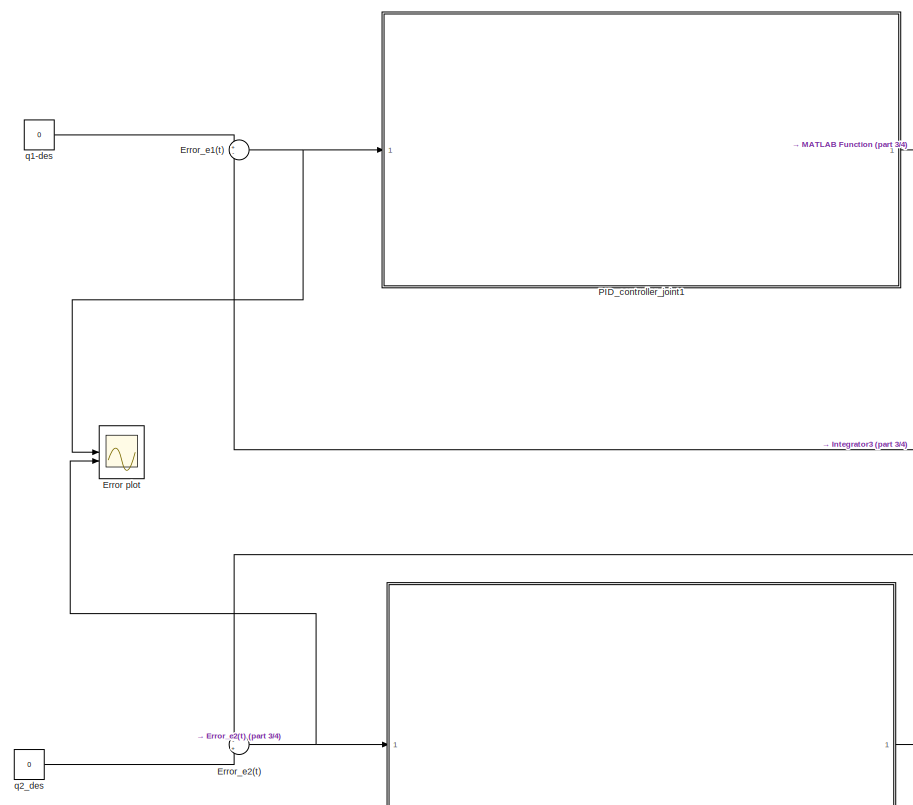
[diagram: root canvas - part 1/4, left side, full height]
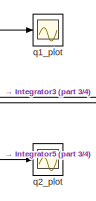
[diagram: root canvas - part 2/4, middle right region]
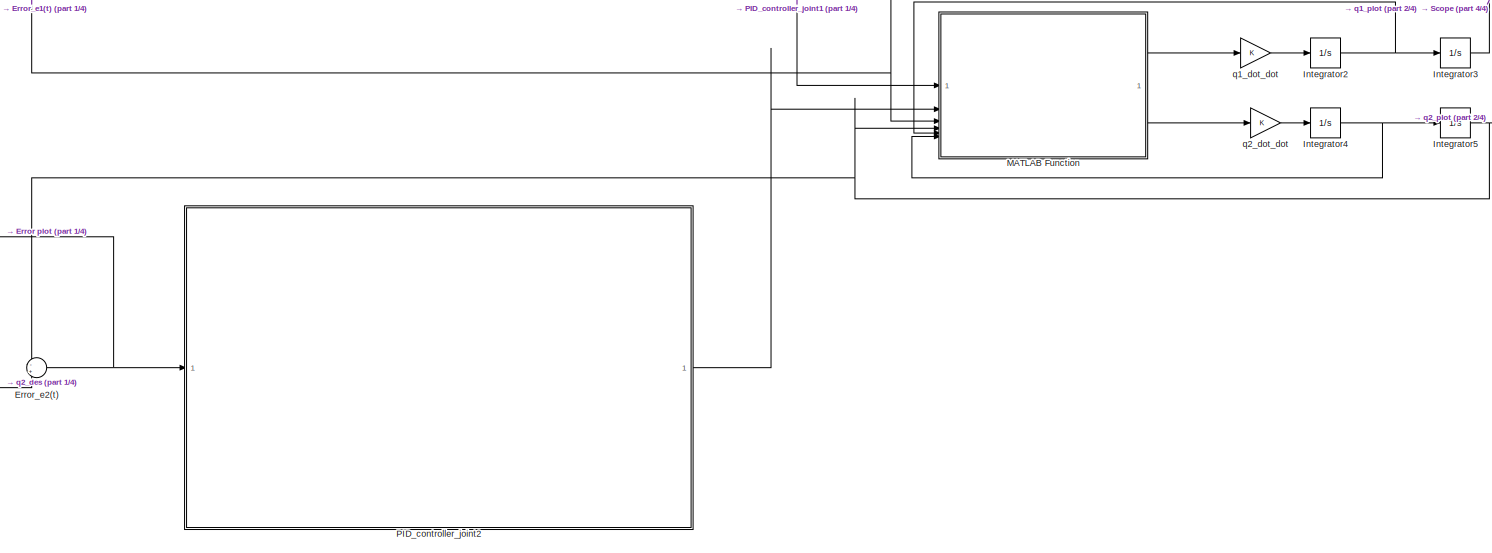
[diagram: root canvas - part 3/4, full width, bottom band]
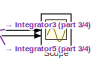
[diagram: root canvas - part 4/4, middle right region]
MODEL slx_2d54d637e5fa
KIND model
CONFIG AbsTol = auto
CONFIG EnableMultiTasking = off
CONFIG FixedStep = auto
CONFIG MaxStep = auto
CONFIG MinStep = auto
CONFIG RelTol = 1e-3
CONFIG SampleTimeConstraint = Unconstrained
CONFIG SolverName = VariableStepAuto
CONFIG StartTime = 0.0
CONFIG StopTime = 10.0
BLOCK [Scope] Error plot
  ActiveDisplayYMaximum = 5.6403532247882645E+43
  ActiveDisplayYMinimum = -5.3633481280846287E+43
  DataLoggingVariableName = ScopeData2
  Floating = off
  GraphicalSettings = {"Style":{"BackgroundColor":[0.12941176470588237,0.12941176470588237,0.12941176470588237],"AxesColor":[0.07058823529411765,0.07058823529411765,0.07058823529411765],"LabelsColor":[0.8509803921568627,0.8509803921568627,0.8509803921568627],"PreserveColors":false,"Visible":[true,true],"LineStyle":["-","-"],"LineWidth":[1.5,1.5],"BarWidth":[0.9,0.9],"LineColor":["auto","auto"],"LineFaceAlpha":[1,1],"Li...<+2220ch>
  MultipleDisplayCache = [{"MaxYLimMag":8.1305980641416589E+40,"MaxYLimReal":5.6403532247882645E+43,"MinYLimMag":0,"MinYLimReal":-5.3633481280846287E+43,"PlotAsMagnitudePhase":false,"ShowGrid":true,"ShowLegend":true,"Title":"Ki_1= 5,Ki_2=5,Kp_1=200,Kp_2=200,Kd_1=400,Kd_2=400","YLabel":""}]
  NumInputPorts = 2
  ScopeFrameLocation = window
  ShowLegend = on
  Title = Ki_1= 5,Ki_2=5,Kp_1=200,Kp_2=200,Kd_1=400,Kd_2=400
  Visible = on
  WasSavedAsWebScope = on
  WindowPosition = [0.000000,36.000000,1536.000000,793.000000,]
BLOCK [Sum] Error_e1(t)
  Inputs = +-
BLOCK [Sum] Error_e2(t)
  Inputs = -+
BLOCK [Integrator] Integrator2
BLOCK [Integrator] Integrator3
BLOCK [Integrator] Integrator4
BLOCK [Integrator] Integrator5
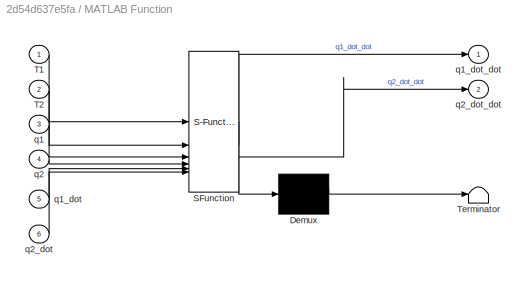
BLOCK [SubSystem] MATLAB Function
  ErrorFcn = Stateflow.Translate.translate
  PermitHierarchicalResolution = ExplicitOnly
  SFBlockType = MATLAB Function
  TreatAsAtomicUnit = on
BLOCK [Demux] MATLAB Function/ Demux 
  Outputs = 1
BLOCK [S-Function] MATLAB Function/ SFunction 
  EnableBusSupport = off
  FunctionName = sf_sfun
  PortCounts = [6 3]
  SFcnIsStateOwnerBlock = off
  SFunctionDeploymentMode = off
  Tag = Stateflow S-Function 2
BLOCK [Terminator] MATLAB Function/ Terminator 
BLOCK [Inport] MATLAB Function/T1
BLOCK [Inport] MATLAB Function/T2
  Port = 2
BLOCK [Inport] MATLAB Function/q1
  Port = 3
BLOCK [Inport] MATLAB Function/q1_dot
  Port = 5
BLOCK [Outport] MATLAB Function/q1_dot_dot
BLOCK [Inport] MATLAB Function/q2
  Port = 4
BLOCK [Inport] MATLAB Function/q2_dot
  Port = 6
BLOCK [Outport] MATLAB Function/q2_dot_dot
  Port = 2
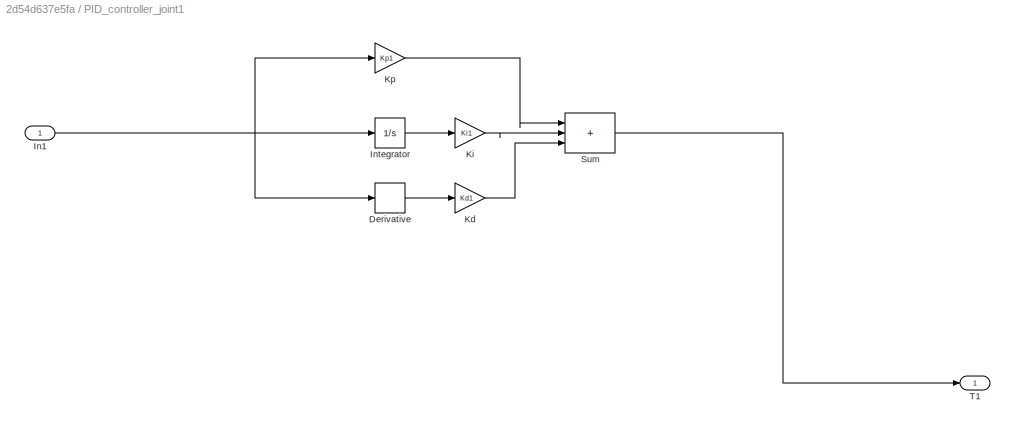
BLOCK [SubSystem] PID_controller_joint1
BLOCK [Derivative] PID_controller_joint1/Derivative
BLOCK [Inport] PID_controller_joint1/In1
BLOCK [Integrator] PID_controller_joint1/Integrator
BLOCK [Gain] PID_controller_joint1/Kd
  Gain = Kd1
BLOCK [Gain] PID_controller_joint1/Ki
  Gain = Ki1
BLOCK [Gain] PID_controller_joint1/Kp
  Gain = Kp1
BLOCK [Sum] PID_controller_joint1/Sum
  IconShape = rectangular
  Inputs = |+++
BLOCK [Outport] PID_controller_joint1/T1
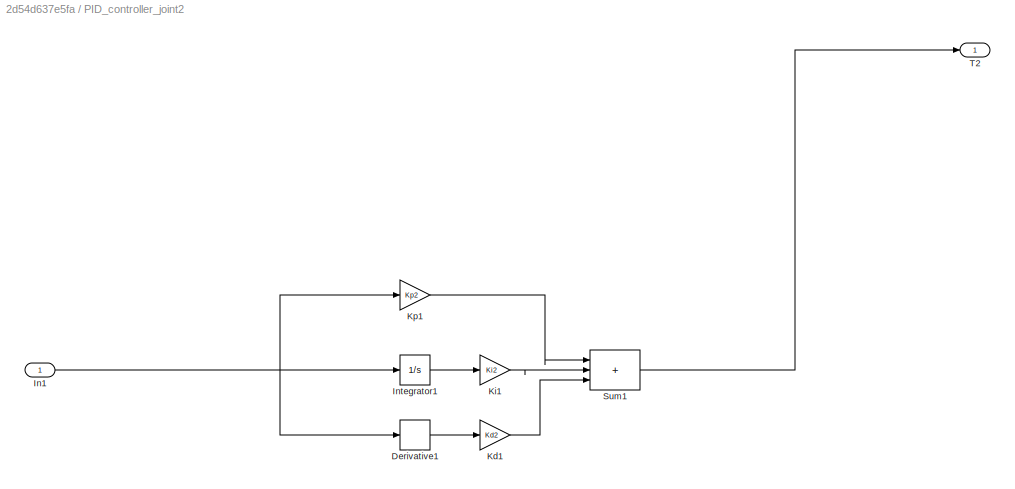
BLOCK [SubSystem] PID_controller_joint2
BLOCK [Derivative] PID_controller_joint2/Derivative1
BLOCK [Inport] PID_controller_joint2/In1
BLOCK [Integrator] PID_controller_joint2/Integrator1
BLOCK [Gain] PID_controller_joint2/Kd1
  Gain = Kd2
BLOCK [Gain] PID_controller_joint2/Ki1
  Gain = Ki2
BLOCK [Gain] PID_controller_joint2/Kp1
  Gain = Kp2
BLOCK [Sum] PID_controller_joint2/Sum1
  IconShape = rectangular
  Inputs = |+++
BLOCK [Outport] PID_controller_joint2/T2
BLOCK [Scope] Scope
  ActiveDisplayYMaximum = 0.011310468207808053
  ActiveDisplayYMinimum = -0.092497055065485209
  DataLoggingVariableName = ScopeData3
  Floating = off
  GraphicalSettings = {"Style":{"BackgroundColor":[0.12941176470588237,0.12941176470588237,0.12941176470588237],"AxesColor":[0.07058823529411765,0.07058823529411765,0.07058823529411765],"LabelsColor":[0.8509803921568627,0.8509803921568627,0.8509803921568627],"PreserveColors":false,"Visible":[true,true],"LineStyle":["-","-"],"LineWidth":[1.5,1.5],"BarWidth":[0.9,0.9],"LineColor":["auto","auto"],"LineFaceAlpha":[1,1],"Li...<+2144ch>
  MultipleDisplayCache = [{"MaxYLimMag":0.092497055065485209,"MaxYLimReal":0.011310468207808053,"MinYLimMag":0,"MinYLimReal":-0.092497055065485209,"PlotAsMagnitudePhase":false,"ShowGrid":true,"ShowLegend":false,"Title":"%<SignalLabel>","YLabel":""}]
  NumInputPorts = 2
  ScopeFrameLocation = window
  Visible = on
  WasSavedAsWebScope = on
  WindowPosition = [1.000000,49.000000,1536.000000,793.000000,]
BLOCK [Constant] q1-des
  Value = 0
BLOCK [Gain] q1_dot_dot
BLOCK [Scope] q1_plot
  ActiveDisplayYMaximum = 0.011310468207808053
  ActiveDisplayYMinimum = -0.092497055065485209
  Floating = off
  GraphicalSettings = {"Style":{"BackgroundColor":[0.12941176470588237,0.12941176470588237,0.12941176470588237],"AxesColor":[0.07058823529411765,0.07058823529411765,0.07058823529411765],"LabelsColor":[0.8509803921568627,0.8509803921568627,0.8509803921568627],"PreserveColors":false,"Visible":[true],"LineStyle":["-"],"LineWidth":[1.5],"BarWidth":[0.9],"LineColor":["auto"],"LineFaceAlpha":[1],"LineEdgeAlpha":[1],"Marker":...<+2020ch>
  MultipleDisplayCache = [{"MaxYLimMag":0.092497055065485209,"MaxYLimReal":0.011310468207808053,"MinYLimMag":0,"MinYLimReal":-0.092497055065485209,"PlotAsMagnitudePhase":false,"ShowGrid":true,"ShowLegend":false,"Title":"%<SignalLabel>","YLabel":""}]
  NumInputPorts = 1
  ScopeFrameLocation = window
  Visible = on
  WasSavedAsWebScope = on
  WindowPosition = [0.000000,36.000000,1536.000000,793.000000,]
BLOCK [Constant] q2_des
  Value = 0
BLOCK [Gain] q2_dot_dot
BLOCK [Scope] q2_plot
  ActiveDisplayYMaximum = 0.00045683308329411837
  ActiveDisplayYMinimum = -0.0028522802877235659
  DataLoggingVariableName = ScopeData1
  Floating = off
  GraphicalSettings = {"Style":{"BackgroundColor":[0.12941176470588237,0.12941176470588237,0.12941176470588237],"AxesColor":[0.07058823529411765,0.07058823529411765,0.07058823529411765],"LabelsColor":[0.8509803921568627,0.8509803921568627,0.8509803921568627],"PreserveColors":false,"Visible":[true],"LineStyle":["-"],"LineWidth":[1.5],"BarWidth":[0.9],"LineColor":["auto"],"LineFaceAlpha":[1],"LineEdgeAlpha":[1],"Marker":...<+2023ch>
  MultipleDisplayCache = [{"MaxYLimMag":0.0025743518960043171,"MaxYLimReal":0.00045683308329411837,"MinYLimMag":0,"MinYLimReal":-0.0028522802877235659,"PlotAsMagnitudePhase":false,"ShowGrid":true,"ShowLegend":false,"Title":"%<SignalLabel>","YLabel":""}]
  NumInputPorts = 1
  ScopeFrameLocation = window
  Visible = on
  WasSavedAsWebScope = on
  WindowPosition = [0.000000,36.000000,1536.000000,793.000000,]
NET Error_e1(t):1 -> Error plot:1, PID_controller_joint1:1
NET Error_e2(t):1 -> Error plot:2, PID_controller_joint2:1
NET Integrator2:1 -> Integrator3:1, MATLAB Function:5
NET Integrator3:1 -> Error_e1(t):2, MATLAB Function:3, Scope:1, q1_plot:1
NET Integrator4:1 -> Integrator5:1, MATLAB Function:6
NET Integrator5:1 -> Error_e2(t):1, MATLAB Function:4, Scope:2, q2_plot:1
LINE MATLAB Function:1 -> q1_dot_dot:1
LINE MATLAB Function:2 -> q2_dot_dot:1
LINE PID_controller_joint1/Derivative:1 -> PID_controller_joint1/Kd:1
NET PID_controller_joint1/In1:1 -> PID_controller_joint1/Derivative:1, PID_controller_joint1/Integrator:1, PID_controller_joint1/Kp:1
LINE PID_controller_joint1/Integrator:1 -> PID_controller_joint1/Ki:1
LINE PID_controller_joint1/Kd:1 -> PID_controller_joint1/Sum:3
LINE PID_controller_joint1/Ki:1 -> PID_controller_joint1/Sum:2
LINE PID_controller_joint1/Kp:1 -> PID_controller_joint1/Sum:1
LINE PID_controller_joint1/Sum:1 -> PID_controller_joint1/T1:1
LINE PID_controller_joint1:1 -> MATLAB Function:1
LINE PID_controller_joint2/Derivative1:1 -> PID_controller_joint2/Kd1:1
NET PID_controller_joint2/In1:1 -> PID_controller_joint2/Derivative1:1, PID_controller_joint2/Integrator1:1, PID_controller_joint2/Kp1:1
LINE PID_controller_joint2/Integrator1:1 -> PID_controller_joint2/Ki1:1
LINE PID_controller_joint2/Kd1:1 -> PID_controller_joint2/Sum1:3
LINE PID_controller_joint2/Ki1:1 -> PID_controller_joint2/Sum1:2
LINE PID_controller_joint2/Kp1:1 -> PID_controller_joint2/Sum1:1
LINE PID_controller_joint2/Sum1:1 -> PID_controller_joint2/T2:1
LINE PID_controller_joint2:1 -> MATLAB Function:2
LINE q1-des:1 -> Error_e1(t):1
LINE q1_dot_dot:1 -> Integrator2:1
LINE q2_des:1 -> Error_e2(t):2
LINE q2_dot_dot:1 -> Integrator4:1
note: NET lines group one-source signal fan-out (src -> all destinations, sorted); 1:1 wires keep LINE
CHART MATLAB Function states=1 transitions=1
  STATE_LABEL 'eML_blk_kernel()'
  STATE_LABEL 'SCRIPT:\nfunction [q1_dot_dot, q2_dot_dot] = compute_q1dd_q2dd(T1, T2, q1, q2, q1_dot, q2_dot)\n    m1 = 5; \n    m2 = 3;  \n    l1 = 0.25; \n    l2 = 0.15; \n    g = 9.81; \n    M11 = (m1 + m2)*l1^2 + m2*l2*(l2 + 2*l1*cos(q2));\n    M12=m2*l2*(l2 + l1*cos(q2));\n    M21=m2*l2*(l2 + l1*cos(q2));\n    M22=m2*l2^2;\n    M=[M11 M12; M21 M22];\n    C11 = -m2*l1*l2*sin(q2)*q2_dot;\n    C12 = -m2*l1*l2*sin(q2)*(q1_d...<+360ch>'
CHART  states=0 transitions=0
